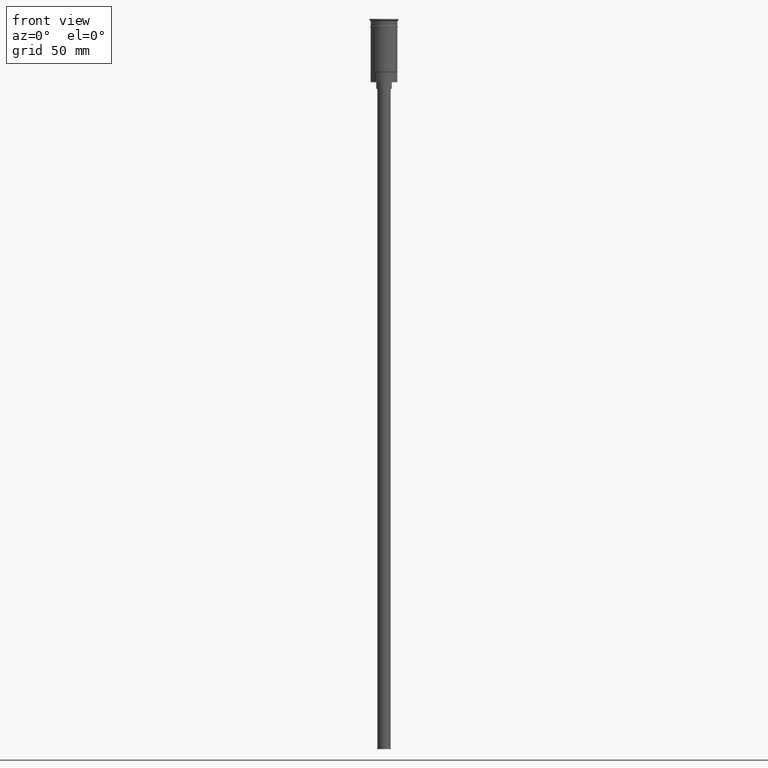
[diagram: clean part render]
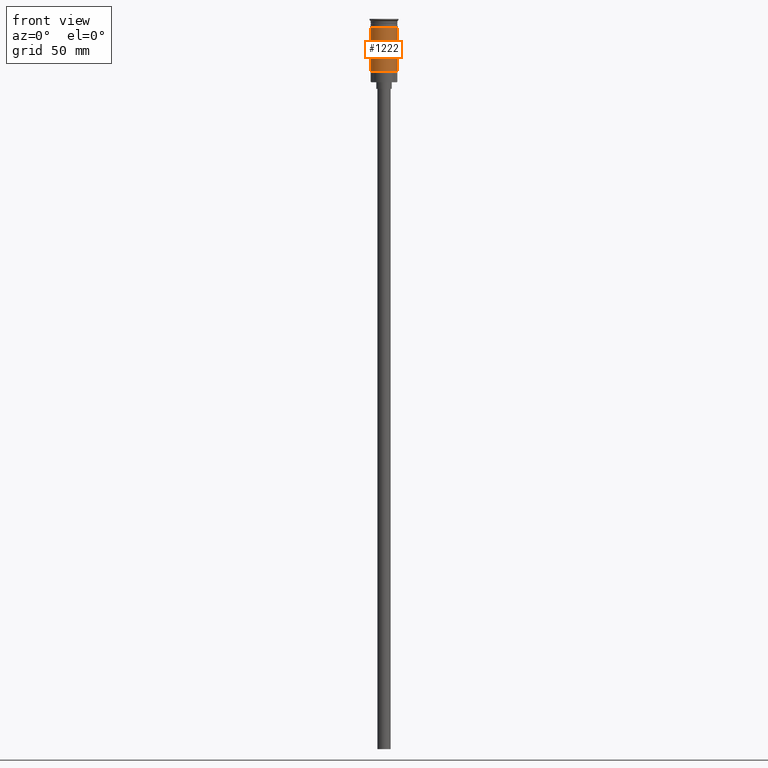
[diagram: same view with one face highlighted and labeled with its STEP entity id]
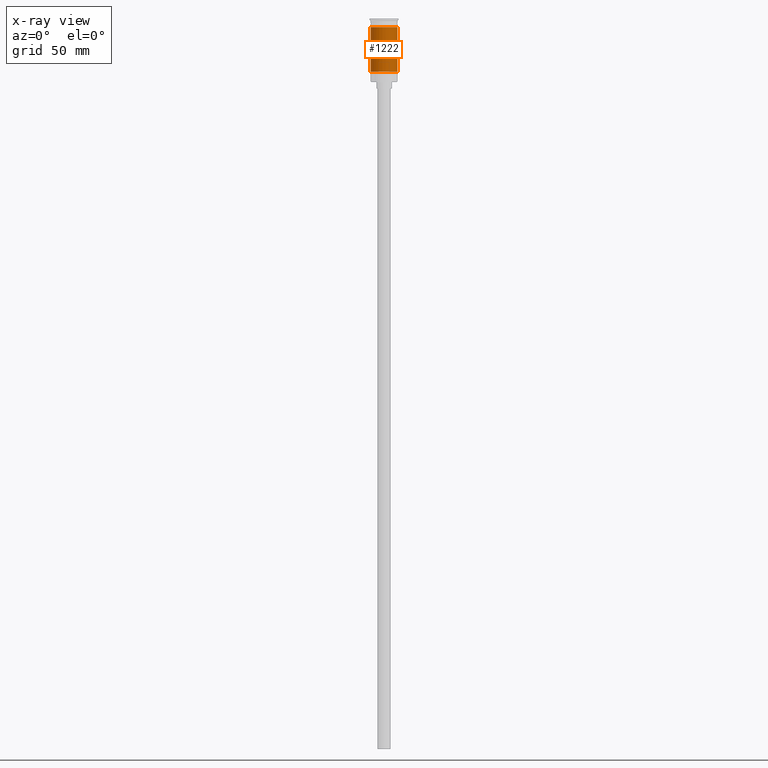
[diagram: x-ray of the same camera — body ghosted, the highlighted face saturated]
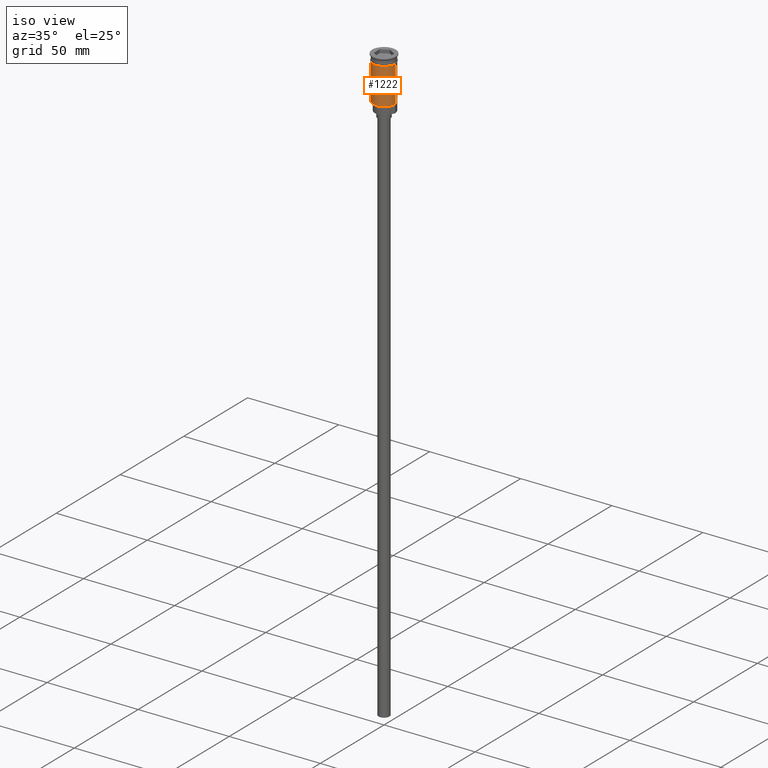
[diagram: same view with one face highlighted and labeled with its STEP entity id]
A machine part, front view. The second image highlights one B-rep face of the part: STEP entity #1222.
The next image is the same camera in x-ray: the body ghosted, the highlighted face saturated — about 0% of this face is hidden behind the body in this view.
A second angle (iso view) of the same face is appended — the face is thin or edge-on in the first view.
In plain terms, the highlighted cylindrical surface (edge-blend (fillet) strip) has radius 6 mm, axis along (-0, -0, 1).
Its self-contained STEP definition (entity closure, byte-faithful):
#30 = CIRCLE ( 'NONE', #214, 5.999999999999997335 ) ;
#42 = CARTESIAN_POINT ( 'NONE',  ( -5.999999999999997335, 7.347880794884116778E-16, 0.000000000000000000 ) ) ;
#96 = EDGE_LOOP ( 'NONE', ( #1425, #1281, #1540, #806 ) ) ;
#136 = DIRECTION ( 'NONE',  ( 1.000000000000000000, 0.000000000000000000, 0.000000000000000000 ) ) ;
#214 = AXIS2_PLACEMENT_3D ( 'NONE', #652, #749, #1278 ) ;
#216 = VERTEX_POINT ( 'NONE', #491 ) ;
#283 = EDGE_CURVE ( 'NONE', #1384, #216, #30, .T. ) ;
#335 = CARTESIAN_POINT ( 'NONE',  ( -5.999999999999994671, 0.000000000000000000, -23.79999999999995453 ) ) ;
#489 = CARTESIAN_POINT ( 'NONE',  ( 5.999999999999997335, 0.000000000000000000, 0.000000000000000000 ) ) ;
#491 = CARTESIAN_POINT ( 'NONE',  ( 5.999999999999997335, 7.347880794884115792E-16, -23.79999999999995453 ) ) ;
#494 = CARTESIAN_POINT ( 'NONE',  ( 6.000000000000000000, 0.000000000000000000, -3.799999999999998490 ) ) ;
#529 = EDGE_CURVE ( 'NONE', #216, #1011, #1342, .T. ) ;
#626 = DIRECTION ( 'NONE',  ( -0.000000000000000000, -0.000000000000000000, 1.000000000000000000 ) ) ;
#647 = LINE ( 'NONE', #42, #665 ) ;
#652 = CARTESIAN_POINT ( 'NONE',  ( 0.000000000000000000, 0.000000000000000000, -23.79999999999995453 ) ) ;
#665 = VECTOR ( 'NONE', #895, 1000.000000000000000 ) ;
#740 = VERTEX_POINT ( 'NONE', #765 ) ;
#749 = DIRECTION ( 'NONE',  ( -0.000000000000000000, -0.000000000000000000, 1.000000000000000000 ) ) ;
#765 = CARTESIAN_POINT ( 'NONE',  ( -6.000000000000000000, 7.347880794884119736E-16, -3.799999999999998490 ) ) ;
#806 = ORIENTED_EDGE ( 'NONE', *, *, #1014, .F. ) ;
#840 = AXIS2_PLACEMENT_3D ( 'NONE', #1292, #1170, #882 ) ;
#882 = DIRECTION ( 'NONE',  ( 1.000000000000000000, 0.000000000000000000, 0.000000000000000000 ) ) ;
#895 = DIRECTION ( 'NONE',  ( -0.000000000000000000, -0.000000000000000000, 1.000000000000000000 ) ) ;
#910 = FACE_OUTER_BOUND ( 'NONE', #96, .T. ) ;
#947 = AXIS2_PLACEMENT_3D ( 'NONE', #1600, #626, #136 ) ;
#1011 = VERTEX_POINT ( 'NONE', #494 ) ;
#1014 = EDGE_CURVE ( 'NONE', #740, #1011, #1285, .T. ) ;
#1096 = DIRECTION ( 'NONE',  ( -0.000000000000000000, -0.000000000000000000, 1.000000000000000000 ) ) ;
#1170 = DIRECTION ( 'NONE',  ( -0.000000000000000000, -0.000000000000000000, 1.000000000000000000 ) ) ;
#1222 = ADVANCED_FACE ( 'NONE', ( #910 ), #1421, .T. ) ;
#1239 = EDGE_CURVE ( 'NONE', #1384, #740, #647, .T. ) ;
#1278 = DIRECTION ( 'NONE',  ( -1.000000000000000000, 0.000000000000000000, 0.000000000000000000 ) ) ;
#1281 = ORIENTED_EDGE ( 'NONE', *, *, #283, .T. ) ;
#1285 = CIRCLE ( 'NONE', #947, 6.000000000000000000 ) ;
#1292 = CARTESIAN_POINT ( 'NONE',  ( 0.000000000000000000, 0.000000000000000000, 0.000000000000000000 ) ) ;
#1342 = LINE ( 'NONE', #489, #1529 ) ;
#1384 = VERTEX_POINT ( 'NONE', #335 ) ;
#1421 = CYLINDRICAL_SURFACE ( 'NONE', #840, 5.999999999999997335 ) ;
#1425 = ORIENTED_EDGE ( 'NONE', *, *, #1239, .F. ) ;
#1529 = VECTOR ( 'NONE', #1096, 1000.000000000000000 ) ;
#1540 = ORIENTED_EDGE ( 'NONE', *, *, #529, .T. ) ;
#1600 = CARTESIAN_POINT ( 'NONE',  ( 0.000000000000000000, 0.000000000000000000, -3.799999999999998490 ) ) ;